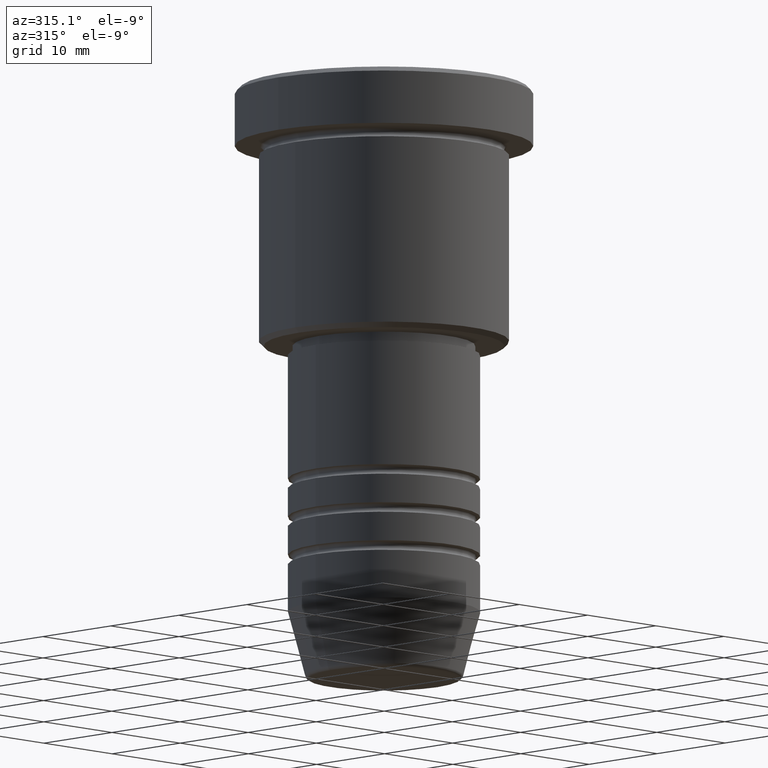
[diagram: clean part render]
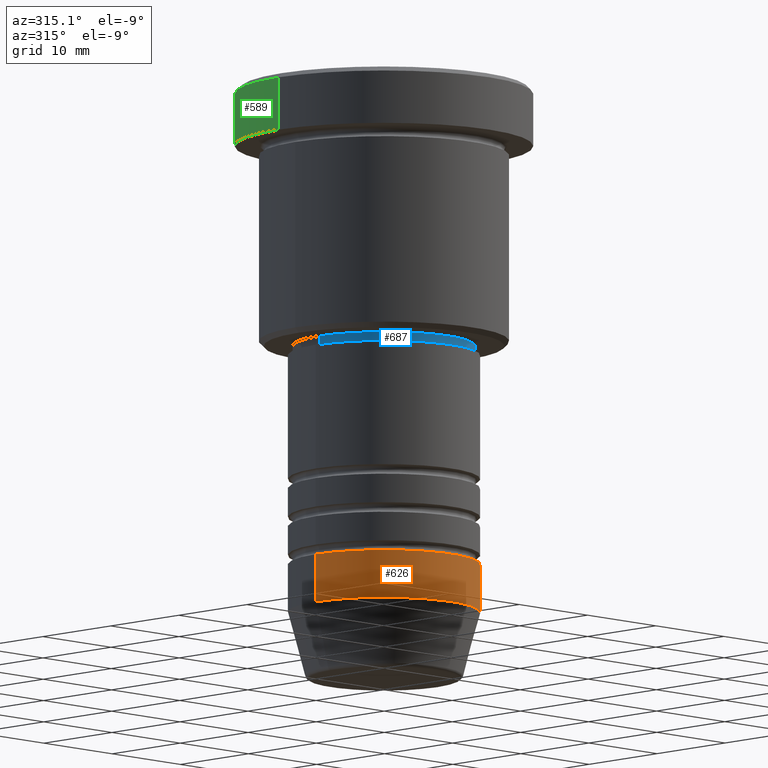
[diagram: same view with three faces highlighted in distinct colors, each labeled with its STEP entity id]
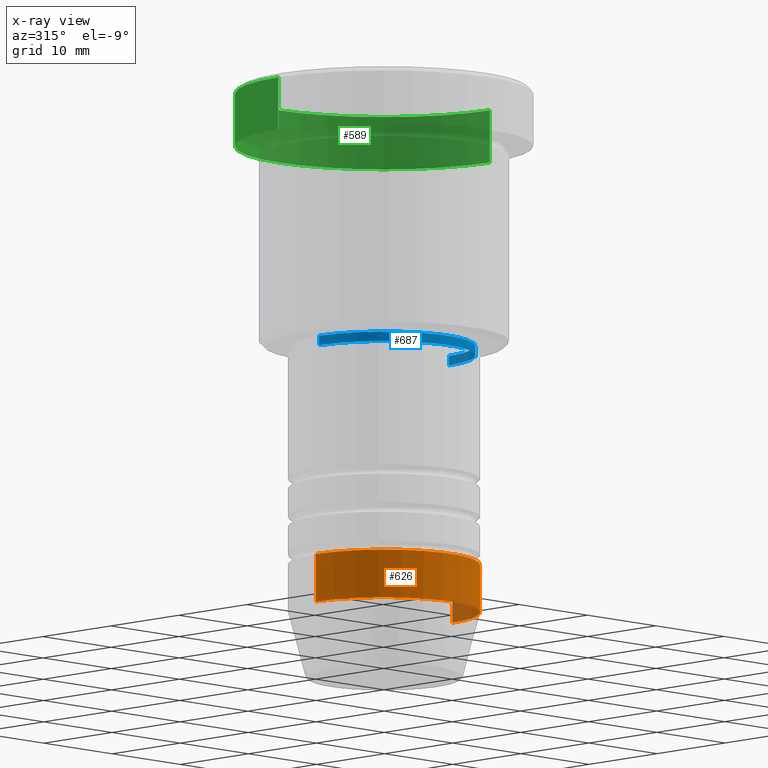
[diagram: x-ray of the same camera — body ghosted, the three highlighted faces saturated]
A machine part, auxiliary view with three faces highlighted in distinct colors.
The next image is the same camera in x-ray (body ghosted, the three faces saturated) — at least one of them is partly hidden behind the body in this view.
Their STEP definitions:

[orange] entity #626 — the highlighted cylindrical surface (partial cylindrical patch) has radius 10 mm, axis along (-0, -0, 1).
#2 = CIRCLE ( 'NONE', #253, 10.00000000000000000 ) ;
#30 = CARTESIAN_POINT ( 'NONE',  ( 10.00000000000000000, 0.000000000000000000, 0.000000000000000000 ) ) ;
#32 = VECTOR ( 'NONE', #795, 1000.000000000000000 ) ;
#44 = LINE ( 'NONE', #30, #98 ) ;
#80 = AXIS2_PLACEMENT_3D ( 'NONE', #348, #1083, #692 ) ;
#98 = VECTOR ( 'NONE', #665, 1000.000000000000000 ) ;
#103 = DIRECTION ( 'NONE',  ( 1.000000000000000000, 0.000000000000000000, 0.000000000000000000 ) ) ;
#120 = ORIENTED_EDGE ( 'NONE', *, *, #504, .F. ) ;
#135 = CARTESIAN_POINT ( 'NONE',  ( 0.000000000000000000, 0.000000000000000000, 0.000000000000000000 ) ) ;
#188 = CARTESIAN_POINT ( 'NONE',  ( 0.000000000000000000, 0.000000000000000000, -50.00000000000000000 ) ) ;
#253 = AXIS2_PLACEMENT_3D ( 'NONE', #188, #549, #103 ) ;
#320 = ORIENTED_EDGE ( 'NONE', *, *, #542, .T. ) ;
#326 = CYLINDRICAL_SURFACE ( 'NONE', #445, 10.00000000000000000 ) ;
#348 = CARTESIAN_POINT ( 'NONE',  ( 0.000000000000000000, 0.000000000000000000, -55.00000000000000000 ) ) ;
#356 = ORIENTED_EDGE ( 'NONE', *, *, #658, .T. ) ;
#373 = CARTESIAN_POINT ( 'NONE',  ( -10.00000000000000000, 1.224646799147353256E-15, -50.00000000000000000 ) ) ;
#438 = LINE ( 'NONE', #891, #32 ) ;
#445 = AXIS2_PLACEMENT_3D ( 'NONE', #135, #486, #498 ) ;
#481 = CARTESIAN_POINT ( 'NONE',  ( -10.00000000000000000, 1.224646799147353256E-15, -55.00000000000000000 ) ) ;
#486 = DIRECTION ( 'NONE',  ( -0.000000000000000000, -0.000000000000000000, 1.000000000000000000 ) ) ;
#498 = DIRECTION ( 'NONE',  ( 1.000000000000000000, 0.000000000000000000, 0.000000000000000000 ) ) ;
#504 = EDGE_CURVE ( 'NONE', #1079, #1008, #438, .T. ) ;
#542 = EDGE_CURVE ( 'NONE', #1079, #906, #585, .T. ) ;
#549 = DIRECTION ( 'NONE',  ( -0.000000000000000000, -0.000000000000000000, 1.000000000000000000 ) ) ;
#585 = CIRCLE ( 'NONE', #80, 10.00000000000000000 ) ;
#626 = ADVANCED_FACE ( 'NONE', ( #963 ), #326, .T. ) ;
#658 = EDGE_CURVE ( 'NONE', #906, #824, #44, .T. ) ;
#665 = DIRECTION ( 'NONE',  ( -0.000000000000000000, -0.000000000000000000, 1.000000000000000000 ) ) ;
#692 = DIRECTION ( 'NONE',  ( 1.000000000000000000, 0.000000000000000000, 0.000000000000000000 ) ) ;
#795 = DIRECTION ( 'NONE',  ( -0.000000000000000000, -0.000000000000000000, 1.000000000000000000 ) ) ;
#824 = VERTEX_POINT ( 'NONE', #1072 ) ;
#891 = CARTESIAN_POINT ( 'NONE',  ( -10.00000000000000000, 1.224646799147353256E-15, 0.000000000000000000 ) ) ;
#906 = VERTEX_POINT ( 'NONE', #1011 ) ;
#963 = FACE_OUTER_BOUND ( 'NONE', #1017, .T. ) ;
#1007 = EDGE_CURVE ( 'NONE', #1008, #824, #2, .T. ) ;
#1008 = VERTEX_POINT ( 'NONE', #373 ) ;
#1011 = CARTESIAN_POINT ( 'NONE',  ( 10.00000000000000000, 0.000000000000000000, -55.00000000000000000 ) ) ;
#1017 = EDGE_LOOP ( 'NONE', ( #120, #320, #356, #1089 ) ) ;
#1072 = CARTESIAN_POINT ( 'NONE',  ( 10.00000000000000000, 0.000000000000000000, -50.00000000000000000 ) ) ;
#1079 = VERTEX_POINT ( 'NONE', #481 ) ;
#1083 = DIRECTION ( 'NONE',  ( -0.000000000000000000, -0.000000000000000000, 1.000000000000000000 ) ) ;
#1089 = ORIENTED_EDGE ( 'NONE', *, *, #1007, .F. ) ;

[blue] entity #687 — the highlighted cylindrical surface (partial cylindrical patch) has radius 9.5 mm, axis along (-0, -0, 1).
#25 = DIRECTION ( 'NONE',  ( -0.000000000000000000, -0.000000000000000000, 1.000000000000000000 ) ) ;
#27 = CARTESIAN_POINT ( 'NONE',  ( 9.500000000000001776, 0.000000000000000000, -26.99999999999999645 ) ) ;
#38 = DIRECTION ( 'NONE',  ( -0.000000000000000000, -0.000000000000000000, 1.000000000000000000 ) ) ;
#49 = DIRECTION ( 'NONE',  ( 1.000000000000000000, 0.000000000000000000, 0.000000000000000000 ) ) ;
#73 = CARTESIAN_POINT ( 'NONE',  ( -9.500000000000001776, 1.163414459189985682E-15, 0.000000000000000000 ) ) ;
#128 = CARTESIAN_POINT ( 'NONE',  ( 0.000000000000000000, 0.000000000000000000, 0.000000000000000000 ) ) ;
#141 = DIRECTION ( 'NONE',  ( 1.000000000000000000, 0.000000000000000000, 0.000000000000000000 ) ) ;
#145 = VERTEX_POINT ( 'NONE', #841 ) ;
#216 = FACE_OUTER_BOUND ( 'NONE', #718, .T. ) ;
#251 = AXIS2_PLACEMENT_3D ( 'NONE', #314, #25, #391 ) ;
#272 = AXIS2_PLACEMENT_3D ( 'NONE', #128, #38, #141 ) ;
#283 = VERTEX_POINT ( 'NONE', #27 ) ;
#298 = ORIENTED_EDGE ( 'NONE', *, *, #748, .F. ) ;
#314 = CARTESIAN_POINT ( 'NONE',  ( 0.000000000000000000, 0.000000000000000000, -26.99999999999999645 ) ) ;
#391 = DIRECTION ( 'NONE',  ( 1.000000000000000000, 0.000000000000000000, 0.000000000000000000 ) ) ;
#400 = CIRCLE ( 'NONE', #251, 9.500000000000001776 ) ;
#423 = LINE ( 'NONE', #1067, #938 ) ;
#460 = ORIENTED_EDGE ( 'NONE', *, *, #616, .T. ) ;
#510 = DIRECTION ( 'NONE',  ( -0.000000000000000000, -0.000000000000000000, 1.000000000000000000 ) ) ;
#590 = LINE ( 'NONE', #73, #830 ) ;
#616 = EDGE_CURVE ( 'NONE', #145, #877, #1094, .T. ) ;
#687 = ADVANCED_FACE ( 'NONE', ( #216 ), #951, .T. ) ;
#707 = EDGE_CURVE ( 'NONE', #974, #283, #400, .T. ) ;
#717 = DIRECTION ( 'NONE',  ( -0.000000000000000000, -0.000000000000000000, 1.000000000000000000 ) ) ;
#718 = EDGE_LOOP ( 'NONE', ( #298, #460, #1006, #927 ) ) ;
#748 = EDGE_CURVE ( 'NONE', #145, #974, #590, .T. ) ;
#750 = CARTESIAN_POINT ( 'NONE',  ( -9.500000000000001776, 1.163414459189985682E-15, -26.99999999999999645 ) ) ;
#830 = VECTOR ( 'NONE', #510, 1000.000000000000000 ) ;
#834 = CARTESIAN_POINT ( 'NONE',  ( 9.500000000000000000, 0.000000000000000000, -27.99999999999999645 ) ) ;
#836 = EDGE_CURVE ( 'NONE', #877, #283, #423, .T. ) ;
#841 = CARTESIAN_POINT ( 'NONE',  ( -9.500000000000000000, 1.163414459189985485E-15, -27.99999999999999645 ) ) ;
#877 = VERTEX_POINT ( 'NONE', #834 ) ;
#897 = CARTESIAN_POINT ( 'NONE',  ( 0.000000000000000000, 0.000000000000000000, -27.99999999999999645 ) ) ;
#927 = ORIENTED_EDGE ( 'NONE', *, *, #707, .F. ) ;
#938 = VECTOR ( 'NONE', #717, 1000.000000000000000 ) ;
#951 = CYLINDRICAL_SURFACE ( 'NONE', #272, 9.500000000000001776 ) ;
#974 = VERTEX_POINT ( 'NONE', #750 ) ;
#979 = AXIS2_PLACEMENT_3D ( 'NONE', #897, #1144, #49 ) ;
#1006 = ORIENTED_EDGE ( 'NONE', *, *, #836, .T. ) ;
#1067 = CARTESIAN_POINT ( 'NONE',  ( 9.500000000000001776, 0.000000000000000000, 0.000000000000000000 ) ) ;
#1094 = CIRCLE ( 'NONE', #979, 9.500000000000000000 ) ;
#1144 = DIRECTION ( 'NONE',  ( -0.000000000000000000, -0.000000000000000000, 1.000000000000000000 ) ) ;

[green] entity #589 — the highlighted cylindrical surface (partial cylindrical patch) has radius 15.5 mm, axis along (-0, -0, 1).
#23 = LINE ( 'NONE', #497, #867 ) ;
#52 = EDGE_LOOP ( 'NONE', ( #201, #418, #1135, #105 ) ) ;
#53 = AXIS2_PLACEMENT_3D ( 'NONE', #928, #278, #1010 ) ;
#59 = DIRECTION ( 'NONE',  ( -0.000000000000000000, -0.000000000000000000, 1.000000000000000000 ) ) ;
#68 = VERTEX_POINT ( 'NONE', #458 ) ;
#101 = EDGE_CURVE ( 'NONE', #206, #232, #741, .T. ) ;
#105 = ORIENTED_EDGE ( 'NONE', *, *, #1043, .F. ) ;
#127 = DIRECTION ( 'NONE',  ( -0.000000000000000000, -0.000000000000000000, 1.000000000000000000 ) ) ;
#169 = CYLINDRICAL_SURFACE ( 'NONE', #1142, 15.50000000000000000 ) ;
#191 = VECTOR ( 'NONE', #871, 1000.000000000000000 ) ;
#201 = ORIENTED_EDGE ( 'NONE', *, *, #101, .T. ) ;
#206 = VERTEX_POINT ( 'NONE', #213 ) ;
#213 = CARTESIAN_POINT ( 'NONE',  ( 15.50000000000000000, 0.000000000000000000, -5.999999999999995559 ) ) ;
#232 = VERTEX_POINT ( 'NONE', #753 ) ;
#234 = DIRECTION ( 'NONE',  ( 0.000000000000000000, 0.000000000000000000, -1.000000000000000000 ) ) ;
#278 = DIRECTION ( 'NONE',  ( -0.000000000000000000, -0.000000000000000000, 1.000000000000000000 ) ) ;
#397 = LINE ( 'NONE', #970, #191 ) ;
#418 = ORIENTED_EDGE ( 'NONE', *, *, #652, .T. ) ;
#458 = CARTESIAN_POINT ( 'NONE',  ( -15.50000000000000000, 1.898202538678397557E-15, -0.5000000000000196509 ) ) ;
#497 = CARTESIAN_POINT ( 'NONE',  ( 15.50000000000000000, 0.000000000000000000, 0.000000000000000000 ) ) ;
#589 = ADVANCED_FACE ( 'NONE', ( #992 ), #169, .T. ) ;
#595 = DIRECTION ( 'NONE',  ( 1.000000000000000000, 0.000000000000000000, 0.000000000000000000 ) ) ;
#609 = AXIS2_PLACEMENT_3D ( 'NONE', #866, #234, #595 ) ;
#617 = DIRECTION ( 'NONE',  ( 1.000000000000000000, 0.000000000000000000, 0.000000000000000000 ) ) ;
#652 = EDGE_CURVE ( 'NONE', #232, #68, #397, .T. ) ;
#698 = EDGE_CURVE ( 'NONE', #68, #703, #1020, .T. ) ;
#703 = VERTEX_POINT ( 'NONE', #1133 ) ;
#741 = CIRCLE ( 'NONE', #53, 15.50000000000000000 ) ;
#753 = CARTESIAN_POINT ( 'NONE',  ( -15.50000000000000000, 1.898202538678397557E-15, -5.999999999999995559 ) ) ;
#866 = CARTESIAN_POINT ( 'NONE',  ( 0.000000000000000000, 0.000000000000000000, -0.5000000000000196509 ) ) ;
#867 = VECTOR ( 'NONE', #127, 1000.000000000000000 ) ;
#871 = DIRECTION ( 'NONE',  ( -0.000000000000000000, -0.000000000000000000, 1.000000000000000000 ) ) ;
#928 = CARTESIAN_POINT ( 'NONE',  ( 0.000000000000000000, 0.000000000000000000, -5.999999999999995559 ) ) ;
#965 = CARTESIAN_POINT ( 'NONE',  ( 0.000000000000000000, 0.000000000000000000, 0.000000000000000000 ) ) ;
#970 = CARTESIAN_POINT ( 'NONE',  ( -15.50000000000000000, 1.898202538678397557E-15, 0.000000000000000000 ) ) ;
#992 = FACE_OUTER_BOUND ( 'NONE', #52, .T. ) ;
#1010 = DIRECTION ( 'NONE',  ( 1.000000000000000000, 0.000000000000000000, 0.000000000000000000 ) ) ;
#1020 = CIRCLE ( 'NONE', #609, 15.50000000000000000 ) ;
#1043 = EDGE_CURVE ( 'NONE', #206, #703, #23, .T. ) ;
#1133 = CARTESIAN_POINT ( 'NONE',  ( 15.50000000000000000, 0.000000000000000000, -0.5000000000000196509 ) ) ;
#1135 = ORIENTED_EDGE ( 'NONE', *, *, #698, .T. ) ;
#1142 = AXIS2_PLACEMENT_3D ( 'NONE', #965, #59, #617 ) ;